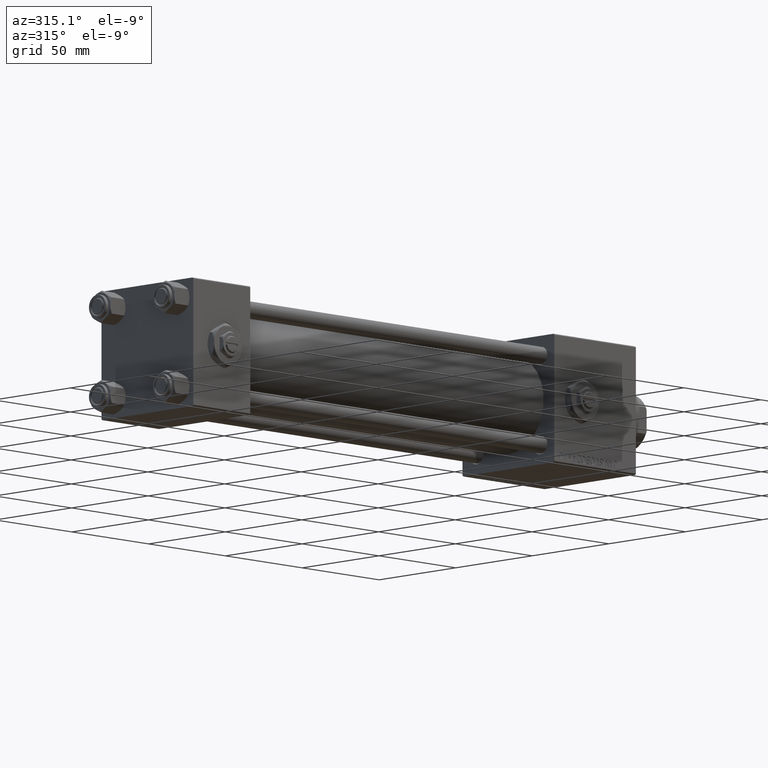
[diagram: clean part render]
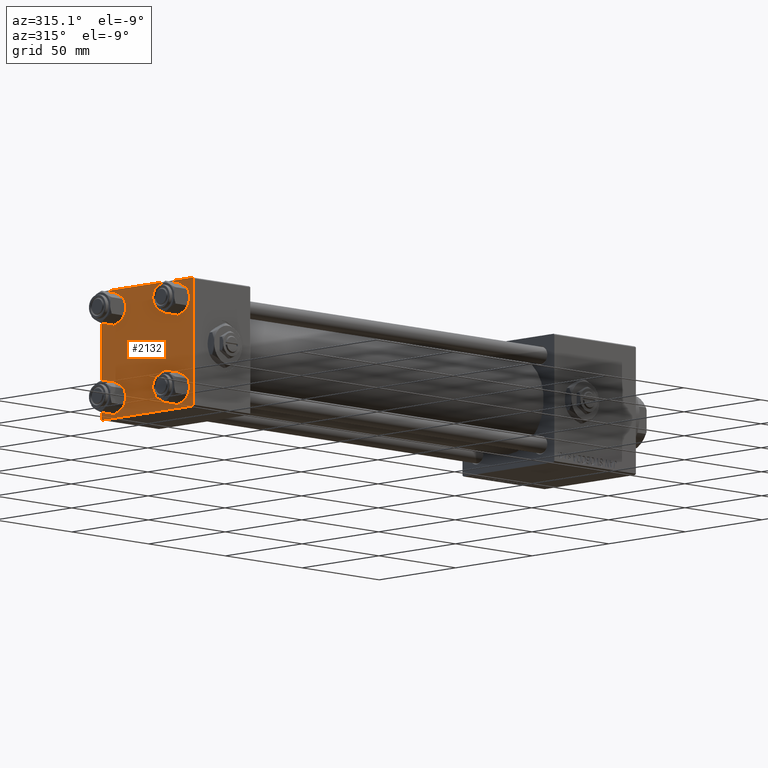
[diagram: same view with one face highlighted and labeled with its STEP entity id]
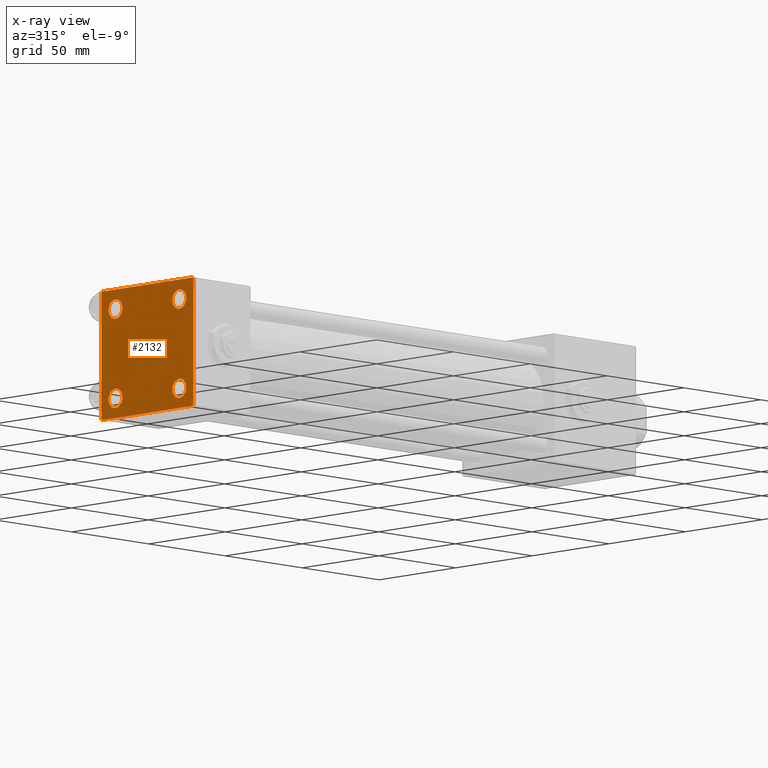
[diagram: x-ray of the same camera — body ghosted, the highlighted face saturated]
A machine part, auxiliary view. The second image highlights one B-rep face of the part: STEP entity #2132.
The next image is the same camera in x-ray: the body ghosted, the highlighted face saturated — about 0% of this face is hidden behind the body in this view.
In plain terms, the highlighted planar face has unit normal (-1, 0, 0).
Its self-contained STEP definition (entity closure, byte-faithful):
#289 = VERTEX_POINT ( 'NONE', #3303 ) ;
#402 = FACE_OUTER_BOUND ( 'NONE', #22603, .T. ) ;
#420 = VERTEX_POINT ( 'NONE', #16305 ) ;
#445 = CARTESIAN_POINT ( 'NONE',  ( 0.000000000000000000, -20.84999999999999076, -20.85000000000000497 ) ) ;
#674 = DIRECTION ( 'NONE',  ( -1.000000000000000000, 0.000000000000000000, -0.000000000000000000 ) ) ;
#686 = VECTOR ( 'NONE', #8232, 1000.000000000000000 ) ;
#926 = CARTESIAN_POINT ( 'NONE',  ( 0.000000000000000000, 0.000000000000000000, 0.000000000000000000 ) ) ;
#1910 = ORIENTED_EDGE ( 'NONE', *, *, #44066, .T. ) ;
#2044 = ORIENTED_EDGE ( 'NONE', *, *, #5462, .F. ) ;
#2076 = EDGE_CURVE ( 'NONE', #22118, #6944, #47806, .T. ) ;
#2111 = ORIENTED_EDGE ( 'NONE', *, *, #16466, .T. ) ;
#2114 = DIRECTION ( 'NONE',  ( 0.000000000000000000, -1.000000000000000000, -1.156482317317871725E-16 ) ) ;
#2132 = ADVANCED_FACE ( 'NONE', ( #20569, #49231, #37032, #41768, #402 ), #44978, .T. ) ;
#2131 = AXIS2_PLACEMENT_3D ( 'NONE', #445, #48470, #16911 ) ;
#2135 = CARTESIAN_POINT ( 'NONE',  ( 0.000000000000000000, 20.84999999999999787, 16.34999999999998366 ) ) ;
#3303 = CARTESIAN_POINT ( 'NONE',  ( 0.000000000000000000, -30.00000000000000000, -29.50000000000001776 ) ) ;
#3359 = CARTESIAN_POINT ( 'NONE',  ( 0.000000000000000000, -29.49999999999998579, 29.99999999999999289 ) ) ;
#3599 = ORIENTED_EDGE ( 'NONE', *, *, #23270, .T. ) ;
#4413 = VERTEX_POINT ( 'NONE', #35324 ) ;
#4468 = EDGE_LOOP ( 'NONE', ( #36234, #13885 ) ) ;
#4493 = CARTESIAN_POINT ( 'NONE',  ( 0.000000000000000000, 20.84999999999999787, 20.85000000000000142 ) ) ;
#5071 = ORIENTED_EDGE ( 'NONE', *, *, #16775, .T. ) ;
#5334 = CIRCLE ( 'NONE', #18050, 4.500000000000017764 ) ;
#5462 = EDGE_CURVE ( 'NONE', #420, #23759, #11117, .T. ) ;
#6021 = CIRCLE ( 'NONE', #20405, 4.500000000000017764 ) ;
#6056 = CARTESIAN_POINT ( 'NONE',  ( 0.000000000000000000, -30.00000000000000000, 29.49999999999999289 ) ) ;
#6812 = DIRECTION ( 'NONE',  ( 0.000000000000000000, 0.7071067811865474617, -0.7071067811865474617 ) ) ;
#6944 = VERTEX_POINT ( 'NONE', #35153 ) ;
#7022 = EDGE_CURVE ( 'NONE', #25283, #47919, #20542, .T. ) ;
#7144 = CARTESIAN_POINT ( 'NONE',  ( 0.000000000000000000, 29.99999999999999289, 30.00000000000000000 ) ) ;
#7582 = EDGE_CURVE ( 'NONE', #42259, #289, #36339, .T. ) ;
#7845 = EDGE_CURVE ( 'NONE', #24770, #19089, #33718, .T. ) ;
#8130 = VECTOR ( 'NONE', #2114, 1000.000000000000000 ) ;
#8232 = DIRECTION ( 'NONE',  ( 0.000000000000000000, 0.000000000000000000, -1.000000000000000000 ) ) ;
#8505 = ORIENTED_EDGE ( 'NONE', *, *, #16795, .T. ) ;
#10104 = CARTESIAN_POINT ( 'NONE',  ( 0.000000000000000000, -20.84999999999999076, -16.34999999999998721 ) ) ;
#10569 = DIRECTION ( 'NONE',  ( 1.000000000000000000, -0.000000000000000000, 0.000000000000000000 ) ) ;
#10618 = DIRECTION ( 'NONE',  ( 0.000000000000000000, -1.000000000000000000, -1.156482317317871725E-16 ) ) ;
#10655 = LINE ( 'NONE', #35318, #33398 ) ;
#11117 = LINE ( 'NONE', #7144, #8130 ) ;
#11437 = EDGE_CURVE ( 'NONE', #420, #25283, #35189, .T. ) ;
#13432 = EDGE_CURVE ( 'NONE', #36228, #4413, #5334, .T. ) ;
#13885 = ORIENTED_EDGE ( 'NONE', *, *, #7845, .T. ) ;
#14558 = DIRECTION ( 'NONE',  ( 0.000000000000000000, -0.7071067811865474617, 0.7071067811865474617 ) ) ;
#14604 = ORIENTED_EDGE ( 'NONE', *, *, #51706, .T. ) ;
#14821 = DIRECTION ( 'NONE',  ( 1.000000000000000000, -0.000000000000000000, 0.000000000000000000 ) ) ;
#15248 = ORIENTED_EDGE ( 'NONE', *, *, #2076, .T. ) ;
#15854 = CARTESIAN_POINT ( 'NONE',  ( 0.000000000000000000, 29.49999999999997868, -30.00000000000000000 ) ) ;
#16305 = CARTESIAN_POINT ( 'NONE',  ( 0.000000000000000000, 29.49999999999999289, 30.00000000000000000 ) ) ;
#16438 = VECTOR ( 'NONE', #46587, 999.9999999999998863 ) ;
#16466 = EDGE_CURVE ( 'NONE', #6944, #22118, #19805, .T. ) ;
#16775 = EDGE_CURVE ( 'NONE', #48794, #20659, #32553, .T. ) ;
#16795 = EDGE_CURVE ( 'NONE', #42259, #23759, #10655, .T. ) ;
#16911 = DIRECTION ( 'NONE',  ( 0.000000000000000000, 0.000000000000000000, 1.000000000000000000 ) ) ;
#17122 = DIRECTION ( 'NONE',  ( -0.000000000000000000, 0.000000000000000000, 1.000000000000000000 ) ) ;
#17285 = CARTESIAN_POINT ( 'NONE',  ( 0.000000000000000000, 20.84999999999999787, -25.35000000000001918 ) ) ;
#17406 = ORIENTED_EDGE ( 'NONE', *, *, #7582, .F. ) ;
#17483 = ORIENTED_EDGE ( 'NONE', *, *, #37049, .T. ) ;
#18050 = AXIS2_PLACEMENT_3D ( 'NONE', #36056, #27555, #36588 ) ;
#18199 = CARTESIAN_POINT ( 'NONE',  ( 0.000000000000000000, 29.74999999999957723, -29.75000000000040501 ) ) ;
#18232 = CARTESIAN_POINT ( 'NONE',  ( 0.000000000000000000, 29.74999999999999645, 29.74999999999999645 ) ) ;
#18317 = CARTESIAN_POINT ( 'NONE',  ( 0.000000000000000000, 29.99999999999999289, -30.00000000000000000 ) ) ;
#19089 = VERTEX_POINT ( 'NONE', #23489 ) ;
#19205 = VECTOR ( 'NONE', #10618, 1000.000000000000000 ) ;
#19805 = CIRCLE ( 'NONE', #41037, 4.500000000000017764 ) ;
#19924 = CIRCLE ( 'NONE', #2131, 4.500000000000017764 ) ;
#20107 = EDGE_CURVE ( 'NONE', #19089, #24770, #39435, .T. ) ;
#20405 = AXIS2_PLACEMENT_3D ( 'NONE', #34719, #10569, #42922 ) ;
#20542 = LINE ( 'NONE', #31954, #23534 ) ;
#20569 = FACE_BOUND ( 'NONE', #44541, .T. ) ;
#20659 = VERTEX_POINT ( 'NONE', #17285 ) ;
#21024 = AXIS2_PLACEMENT_3D ( 'NONE', #25959, #14821, #42398 ) ;
#22118 = VERTEX_POINT ( 'NONE', #49182 ) ;
#22374 = ORIENTED_EDGE ( 'NONE', *, *, #13432, .T. ) ;
#22603 = EDGE_LOOP ( 'NONE', ( #29723, #1910, #3599, #32740, #17406, #8505, #2044, #25581 ) ) ;
#22620 = CARTESIAN_POINT ( 'NONE',  ( 0.000000000000000000, 29.99999999999999289, -29.50000000000000000 ) ) ;
#22718 = CARTESIAN_POINT ( 'NONE',  ( 0.000000000000000000, -29.50000000000000000, -30.00000000000000711 ) ) ;
#22877 = CARTESIAN_POINT ( 'NONE',  ( 0.000000000000000000, 29.99999999999999289, 29.50000000000000000 ) ) ;
#23270 = EDGE_CURVE ( 'NONE', #43901, #34567, #51479, .T. ) ;
#23489 = CARTESIAN_POINT ( 'NONE',  ( 0.000000000000000000, 20.84999999999999787, 25.35000000000001918 ) ) ;
#23534 = VECTOR ( 'NONE', #27697, 1000.000000000000000 ) ;
#23671 = DIRECTION ( 'NONE',  ( 1.000000000000000000, -0.000000000000000000, 0.000000000000000000 ) ) ;
#23759 = VERTEX_POINT ( 'NONE', #3359 ) ;
#24770 = VERTEX_POINT ( 'NONE', #2135 ) ;
#25283 = VERTEX_POINT ( 'NONE', #22877 ) ;
#25581 = ORIENTED_EDGE ( 'NONE', *, *, #11437, .T. ) ;
#25959 = CARTESIAN_POINT ( 'NONE',  ( 0.000000000000000000, 20.84999999999999787, 20.85000000000000142 ) ) ;
#27321 = CARTESIAN_POINT ( 'NONE',  ( 0.000000000000000000, 20.84999999999999787, -20.85000000000000142 ) ) ;
#27555 = DIRECTION ( 'NONE',  ( 1.000000000000000000, -0.000000000000000000, 0.000000000000000000 ) ) ;
#27697 = DIRECTION ( 'NONE',  ( 0.000000000000000000, 0.000000000000000000, -1.000000000000000000 ) ) ;
#29189 = AXIS2_PLACEMENT_3D ( 'NONE', #926, #674, #17122 ) ;
#29723 = ORIENTED_EDGE ( 'NONE', *, *, #7022, .T. ) ;
#31078 = DIRECTION ( 'NONE',  ( -0.000000000000000000, 0.7071067811865474617, 0.7071067811865474617 ) ) ;
#31764 = LINE ( 'NONE', #50908, #47483 ) ;
#31954 = CARTESIAN_POINT ( 'NONE',  ( 0.000000000000000000, 29.99999999999999289, 30.00000000000000000 ) ) ;
#32553 = CIRCLE ( 'NONE', #42685, 4.500000000000017764 ) ;
#32740 = ORIENTED_EDGE ( 'NONE', *, *, #37004, .T. ) ;
#32784 = DIRECTION ( 'NONE',  ( 0.000000000000000000, 0.000000000000000000, 1.000000000000000000 ) ) ;
#33398 = VECTOR ( 'NONE', #31078, 1000.000000000000114 ) ;
#33563 = CARTESIAN_POINT ( 'NONE',  ( 0.000000000000000000, -20.84999999999999076, 20.85000000000000497 ) ) ;
#33718 = CIRCLE ( 'NONE', #21024, 4.500000000000017764 ) ;
#34567 = VERTEX_POINT ( 'NONE', #22718 ) ;
#34719 = CARTESIAN_POINT ( 'NONE',  ( 0.000000000000000000, 20.84999999999999787, -20.85000000000000142 ) ) ;
#35153 = CARTESIAN_POINT ( 'NONE',  ( 0.000000000000000000, -20.84999999999999076, 16.34999999999998721 ) ) ;
#35189 = LINE ( 'NONE', #18232, #45064 ) ;
#35318 = CARTESIAN_POINT ( 'NONE',  ( -0.000000000000000000, -29.74999999999999645, 29.74999999999999645 ) ) ;
#35324 = CARTESIAN_POINT ( 'NONE',  ( 0.000000000000000000, -20.84999999999999076, -25.35000000000002274 ) ) ;
#35370 = DIRECTION ( 'NONE',  ( 0.000000000000000000, 0.000000000000000000, 1.000000000000000000 ) ) ;
#36026 = AXIS2_PLACEMENT_3D ( 'NONE', #4493, #49326, #36860 ) ;
#36056 = CARTESIAN_POINT ( 'NONE',  ( 0.000000000000000000, -20.84999999999999076, -20.85000000000000497 ) ) ;
#36228 = VERTEX_POINT ( 'NONE', #10104 ) ;
#36234 = ORIENTED_EDGE ( 'NONE', *, *, #20107, .T. ) ;
#36339 = LINE ( 'NONE', #47749, #686 ) ;
#36588 = DIRECTION ( 'NONE',  ( 0.000000000000000000, 0.000000000000000000, 1.000000000000000000 ) ) ;
#36754 = DIRECTION ( 'NONE',  ( 1.000000000000000000, -0.000000000000000000, 0.000000000000000000 ) ) ;
#36801 = AXIS2_PLACEMENT_3D ( 'NONE', #33563, #36754, #32784 ) ;
#36860 = DIRECTION ( 'NONE',  ( 0.000000000000000000, 0.000000000000000000, 1.000000000000000000 ) ) ;
#37004 = EDGE_CURVE ( 'NONE', #34567, #289, #31764, .T. ) ;
#37032 = FACE_BOUND ( 'NONE', #39066, .T. ) ;
#37049 = EDGE_CURVE ( 'NONE', #20659, #48794, #6021, .T. ) ;
#38108 = LINE ( 'NONE', #18199, #16438 ) ;
#39066 = EDGE_LOOP ( 'NONE', ( #5071, #17483 ) ) ;
#39435 = CIRCLE ( 'NONE', #36026, 4.500000000000017764 ) ;
#39689 = EDGE_LOOP ( 'NONE', ( #22374, #14604 ) ) ;
#41037 = AXIS2_PLACEMENT_3D ( 'NONE', #50262, #23671, #35370 ) ;
#41768 = FACE_BOUND ( 'NONE', #4468, .T. ) ;
#42259 = VERTEX_POINT ( 'NONE', #6056 ) ;
#42398 = DIRECTION ( 'NONE',  ( 0.000000000000000000, 0.000000000000000000, 1.000000000000000000 ) ) ;
#42685 = AXIS2_PLACEMENT_3D ( 'NONE', #27321, #51515, #43262 ) ;
#42922 = DIRECTION ( 'NONE',  ( 0.000000000000000000, 0.000000000000000000, 1.000000000000000000 ) ) ;
#43262 = DIRECTION ( 'NONE',  ( 0.000000000000000000, 0.000000000000000000, 1.000000000000000000 ) ) ;
#43901 = VERTEX_POINT ( 'NONE', #15854 ) ;
#44066 = EDGE_CURVE ( 'NONE', #47919, #43901, #38108, .T. ) ;
#44541 = EDGE_LOOP ( 'NONE', ( #15248, #2111 ) ) ;
#44978 = PLANE ( 'NONE',  #29189 ) ;
#45064 = VECTOR ( 'NONE', #6812, 1000.000000000000114 ) ;
#45557 = CARTESIAN_POINT ( 'NONE',  ( 0.000000000000000000, 20.84999999999999787, -16.34999999999998366 ) ) ;
#46587 = DIRECTION ( 'NONE',  ( -0.000000000000000000, -0.7071067811865574537, -0.7071067811865376918 ) ) ;
#47483 = VECTOR ( 'NONE', #14558, 1000.000000000000114 ) ;
#47749 = CARTESIAN_POINT ( 'NONE',  ( 0.000000000000000000, -30.00000000000000000, 29.99999999999999289 ) ) ;
#47806 = CIRCLE ( 'NONE', #36801, 4.500000000000017764 ) ;
#47919 = VERTEX_POINT ( 'NONE', #22620 ) ;
#48470 = DIRECTION ( 'NONE',  ( 1.000000000000000000, -0.000000000000000000, 0.000000000000000000 ) ) ;
#48794 = VERTEX_POINT ( 'NONE', #45557 ) ;
#49182 = CARTESIAN_POINT ( 'NONE',  ( 0.000000000000000000, -20.84999999999999076, 25.35000000000002274 ) ) ;
#49231 = FACE_BOUND ( 'NONE', #39689, .T. ) ;
#49326 = DIRECTION ( 'NONE',  ( 1.000000000000000000, -0.000000000000000000, 0.000000000000000000 ) ) ;
#50262 = CARTESIAN_POINT ( 'NONE',  ( 0.000000000000000000, -20.84999999999999076, 20.85000000000000497 ) ) ;
#50908 = CARTESIAN_POINT ( 'NONE',  ( 0.000000000000000000, -29.75000000000001066, -29.75000000000001066 ) ) ;
#51479 = LINE ( 'NONE', #18317, #19205 ) ;
#51515 = DIRECTION ( 'NONE',  ( 1.000000000000000000, -0.000000000000000000, 0.000000000000000000 ) ) ;
#51706 = EDGE_CURVE ( 'NONE', #4413, #36228, #19924, .T. ) ;